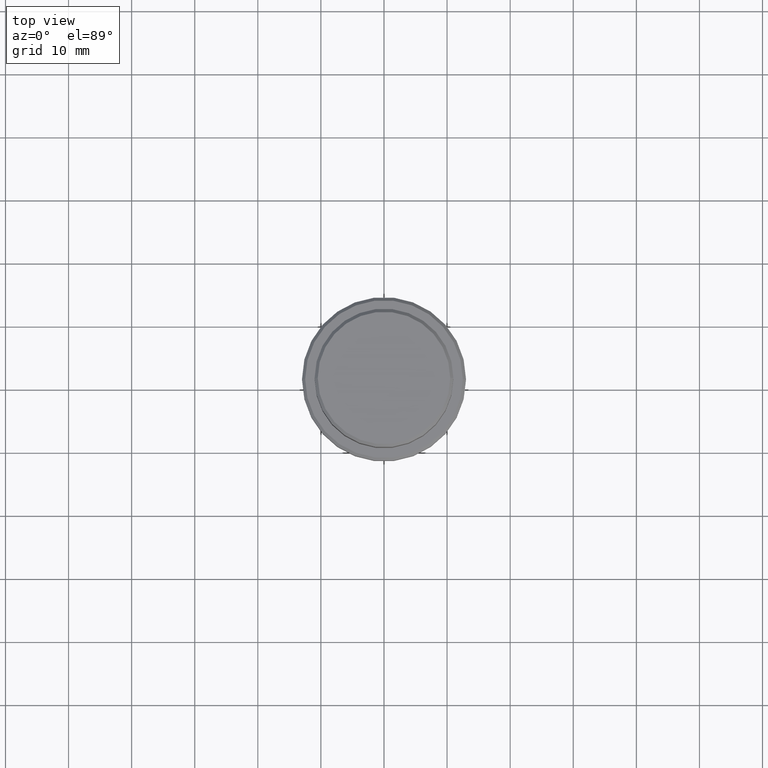
[diagram: clean part render]
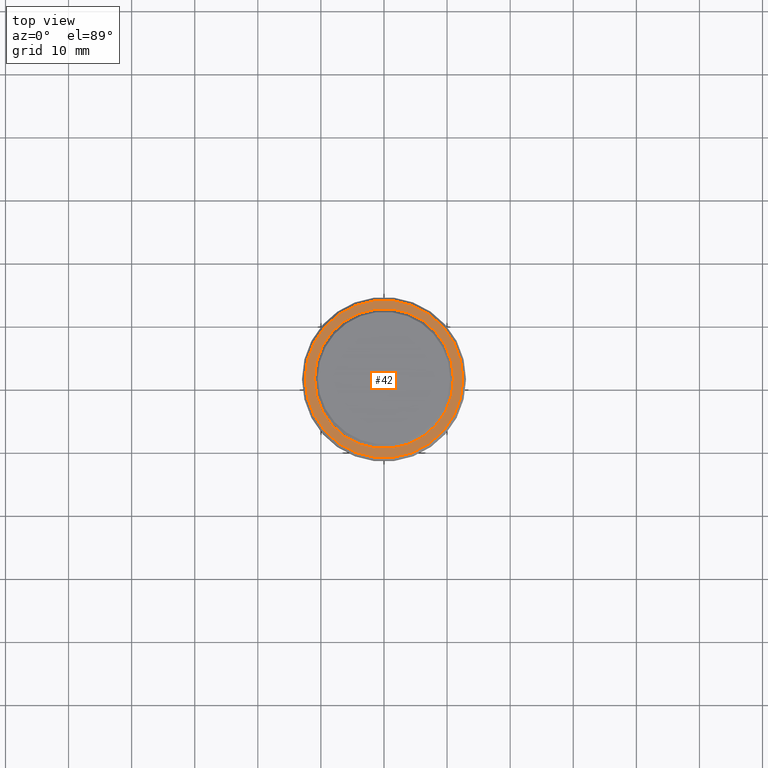
[diagram: same view with one face highlighted and labeled with its STEP entity id]
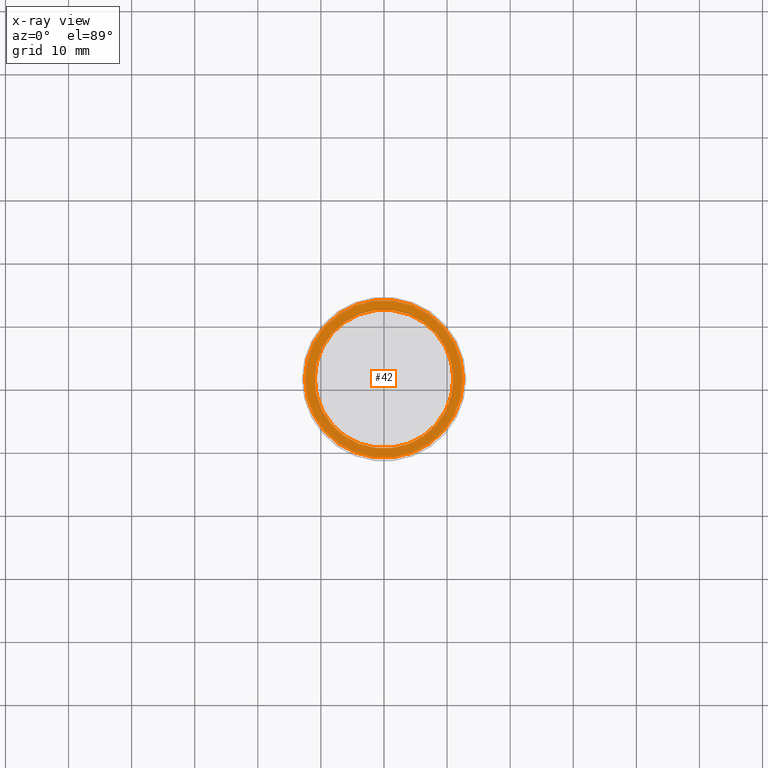
[diagram: x-ray of the same camera — body ghosted, the highlighted face saturated]
A machine part, top view. The second image highlights one B-rep face of the part: STEP entity #42.
The next image is the same camera in x-ray: the body ghosted, the highlighted face saturated — about 0% of this face is hidden behind the body in this view.
In plain terms, the highlighted planar face has unit normal (0, -0, 1).
Its self-contained STEP definition (entity closure, byte-faithful):
#42 = ADVANCED_FACE ( 'NONE', ( #1360, #293 ), #266, .T. ) ;
#108 = ORIENTED_EDGE ( 'NONE', *, *, #867, .T. ) ;
#141 = DIRECTION ( 'NONE',  ( -0.000000000000000000, -0.000000000000000000, 1.000000000000000000 ) ) ;
#160 = DIRECTION ( 'NONE',  ( 0.000000000000000000, -0.000000000000000000, 1.000000000000000000 ) ) ;
#194 = CIRCLE ( 'NONE', #982, 12.49999999999999645 ) ;
#207 = VERTEX_POINT ( 'NONE', #1303 ) ;
#225 = VERTEX_POINT ( 'NONE', #674 ) ;
#264 = CIRCLE ( 'NONE', #446, 10.99999999999996625 ) ;
#266 = PLANE ( 'NONE',  #1030 ) ;
#277 = EDGE_LOOP ( 'NONE', ( #108, #1019 ) ) ;
#283 = AXIS2_PLACEMENT_3D ( 'NONE', #592, #141, #782 ) ;
#293 = FACE_BOUND ( 'NONE', #277, .T. ) ;
#310 = CARTESIAN_POINT ( 'NONE',  ( 0.000000000000000000, 0.000000000000000000, -10.00000000000000000 ) ) ;
#390 = CIRCLE ( 'NONE', #283, 12.49999999999999645 ) ;
#401 = EDGE_LOOP ( 'NONE', ( #1263, #926 ) ) ;
#445 = AXIS2_PLACEMENT_3D ( 'NONE', #310, #651, #1172 ) ;
#446 = AXIS2_PLACEMENT_3D ( 'NONE', #1088, #1100, #553 ) ;
#471 = EDGE_CURVE ( 'NONE', #563, #207, #194, .T. ) ;
#479 = CIRCLE ( 'NONE', #445, 10.99999999999996625 ) ;
#553 = DIRECTION ( 'NONE',  ( 1.000000000000000000, 0.000000000000000000, 0.000000000000000000 ) ) ;
#563 = VERTEX_POINT ( 'NONE', #986 ) ;
#592 = CARTESIAN_POINT ( 'NONE',  ( 0.000000000000000000, 0.000000000000000000, -10.00000000000000000 ) ) ;
#609 = EDGE_CURVE ( 'NONE', #207, #563, #390, .T. ) ;
#630 = CARTESIAN_POINT ( 'NONE',  ( 0.000000000000000000, 0.000000000000000000, -10.00000000000000000 ) ) ;
#651 = DIRECTION ( 'NONE',  ( 0.000000000000000000, 0.000000000000000000, -1.000000000000000000 ) ) ;
#674 = CARTESIAN_POINT ( 'NONE',  ( 10.99999999999996625, 0.000000000000000000, -10.00000000000000000 ) ) ;
#782 = DIRECTION ( 'NONE',  ( 1.000000000000000000, 0.000000000000000000, 0.000000000000000000 ) ) ;
#785 = DIRECTION ( 'NONE',  ( 1.000000000000000000, 0.000000000000000000, 0.000000000000000000 ) ) ;
#821 = VERTEX_POINT ( 'NONE', #1093 ) ;
#867 = EDGE_CURVE ( 'NONE', #225, #821, #479, .T. ) ;
#926 = ORIENTED_EDGE ( 'NONE', *, *, #609, .T. ) ;
#955 = DIRECTION ( 'NONE',  ( -0.000000000000000000, -0.000000000000000000, 1.000000000000000000 ) ) ;
#982 = AXIS2_PLACEMENT_3D ( 'NONE', #630, #955, #785 ) ;
#986 = CARTESIAN_POINT ( 'NONE',  ( -12.49999999999999645, 0.000000000000000000, -10.00000000000000000 ) ) ;
#1016 = DIRECTION ( 'NONE',  ( 1.000000000000000000, 0.000000000000000000, 0.000000000000000000 ) ) ;
#1019 = ORIENTED_EDGE ( 'NONE', *, *, #1338, .T. ) ;
#1030 = AXIS2_PLACEMENT_3D ( 'NONE', #1129, #160, #1016 ) ;
#1088 = CARTESIAN_POINT ( 'NONE',  ( 0.000000000000000000, 0.000000000000000000, -10.00000000000000000 ) ) ;
#1093 = CARTESIAN_POINT ( 'NONE',  ( -10.99999999999996625, 1.347111479062084460E-15, -10.00000000000000000 ) ) ;
#1100 = DIRECTION ( 'NONE',  ( 0.000000000000000000, 0.000000000000000000, -1.000000000000000000 ) ) ;
#1129 = CARTESIAN_POINT ( 'NONE',  ( 0.000000000000000000, 10.49999999999996625, -10.00000000000000000 ) ) ;
#1172 = DIRECTION ( 'NONE',  ( 1.000000000000000000, 0.000000000000000000, 0.000000000000000000 ) ) ;
#1263 = ORIENTED_EDGE ( 'NONE', *, *, #471, .T. ) ;
#1303 = CARTESIAN_POINT ( 'NONE',  ( 12.49999999999999645, 1.561424668912875111E-15, -10.00000000000000000 ) ) ;
#1338 = EDGE_CURVE ( 'NONE', #821, #225, #264, .T. ) ;
#1360 = FACE_OUTER_BOUND ( 'NONE', #401, .T. ) ;